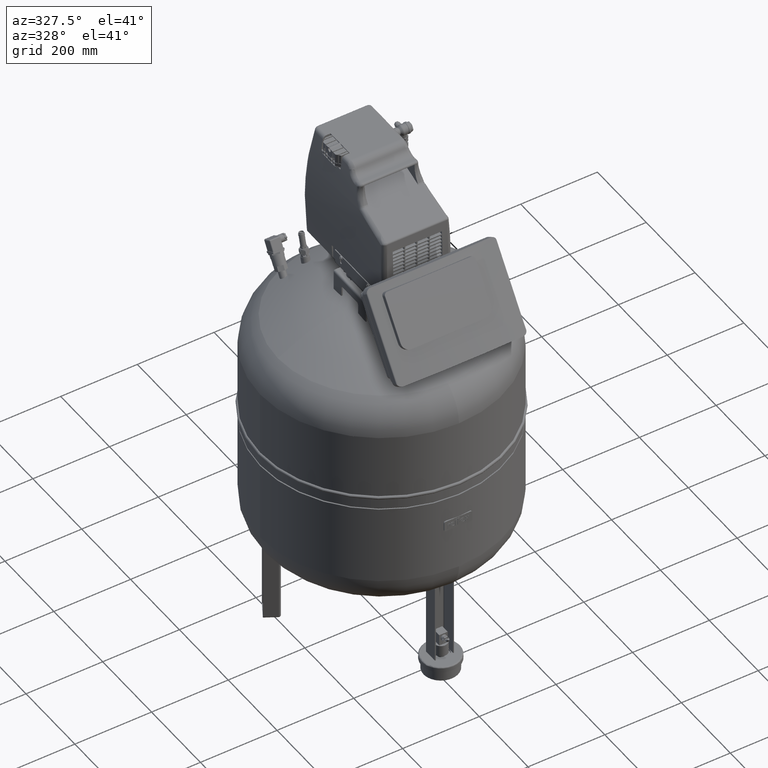
[diagram: clean part render]
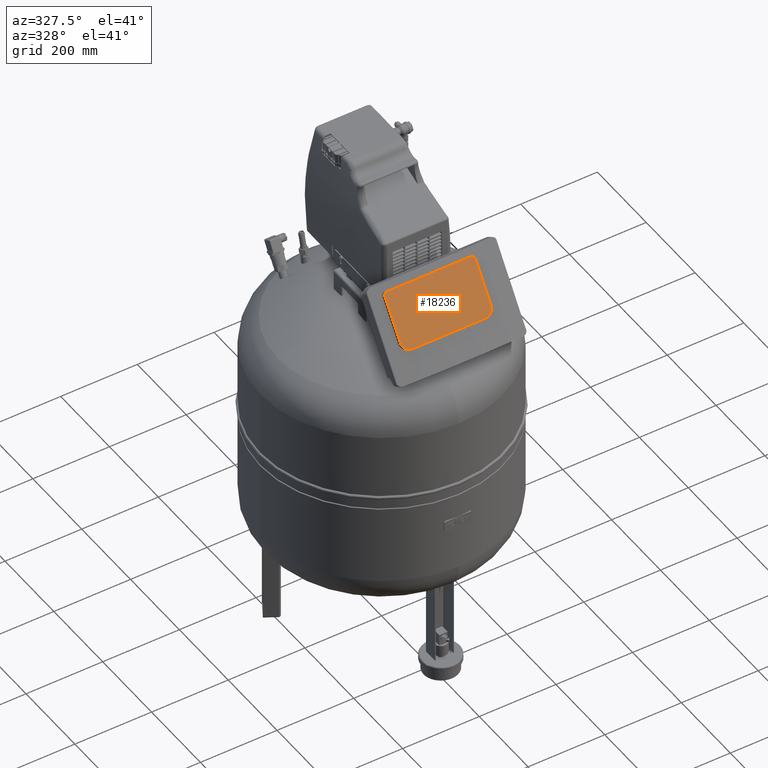
[diagram: same view with one face highlighted and labeled with its STEP entity id]
A machine part, auxiliary view. The second image highlights one B-rep face of the part: STEP entity #18236.
In plain terms, the highlighted planar face has unit normal (-0, -0.8192, 0.5736).
Its self-contained STEP definition (entity closure, byte-faithful):
#18031=CARTESIAN_POINT('',(-137.30000057976841,-293.02819002678893,1049.1023228608317));
#18032=VERTEX_POINT('',#18031);
#18039=CARTESIAN_POINT('',(-137.30000057976818,-229.93478202817394,1139.2090477326208));
#18040=VERTEX_POINT('',#18039);
#18041=CARTESIAN_POINT('',(-137.30000057976818,-229.93478202817394,1139.2090477326208));
#18042=DIRECTION('',(-5.167584E-016,-0.573576436351045,-0.819152044288992));
#18043=VECTOR('',#18042,109.99999999999991);
#18044=LINE('',#18041,#18043);
#18045=EDGE_CURVE('',#18040,#18032,#18044,.T.);
#18062=CARTESIAN_POINT('',(-115.80000057976847,-305.36008340833638,1031.4905539086183));
#18063=VERTEX_POINT('',#18062);
#18070=CARTESIAN_POINT('',(-115.80000057976824,-293.02819002678893,1049.1023228608317));
#18071=DIRECTION('',(0.0,-0.819152044288992,0.573576436351046));
#18072=DIRECTION('',(-1.0,0.0,0.0));
#18073=AXIS2_PLACEMENT_3D('',#18070,#18071,#18072);
#18074=CIRCLE('',#18073,21.500000000000021);
#18075=EDGE_CURVE('',#18032,#18063,#18074,.T.);
#18087=CARTESIAN_POINT('',(77.199999420231791,-305.36008340833666,1031.4905539086183));
#18088=VERTEX_POINT('',#18087);
#18095=CARTESIAN_POINT('',(-115.80000057976847,-305.36008340833638,1031.4905539086183));
#18096=DIRECTION('',(1.0,0.0,0.0));
#18097=VECTOR('',#18096,193.00000000000026);
#18098=LINE('',#18095,#18097);
#18099=EDGE_CURVE('',#18063,#18088,#18098,.T.);
#18111=CARTESIAN_POINT('',(98.699999420231791,-293.02819002678916,1049.1023228608317));
#18112=VERTEX_POINT('',#18111);
#18119=CARTESIAN_POINT('',(77.199999420231791,-293.02819002678916,1049.1023228608317));
#18120=DIRECTION('',(-1.672843E-016,-0.819152044288992,0.573576436351045));
#18121=DIRECTION('',(-5.086343E-016,-0.573576436351045,-0.819152044288992));
#18122=AXIS2_PLACEMENT_3D('',#18119,#18120,#18121);
#18123=CIRCLE('',#18122,21.500000000000011);
#18124=EDGE_CURVE('',#18088,#18112,#18123,.T.);
#18136=CARTESIAN_POINT('',(98.699999420231791,-229.93478202817394,1139.2090477326208));
#18137=VERTEX_POINT('',#18136);
#18144=CARTESIAN_POINT('',(98.699999420231791,-293.02819002678916,1049.1023228608317));
#18145=DIRECTION('',(3.875688E-016,0.573576436351045,0.819152044288993));
#18146=VECTOR('',#18145,110.00000000000014);
#18147=LINE('',#18144,#18146);
#18148=EDGE_CURVE('',#18112,#18137,#18147,.T.);
#18160=CARTESIAN_POINT('',(90.199999420231791,-225.05938231919015,1146.1718401090773));
#18161=VERTEX_POINT('',#18160);
#18168=CARTESIAN_POINT('',(90.199999420231791,-229.93478202817394,1139.2090477326208));
#18169=DIRECTION('',(0.0,-0.819152044288992,0.573576436351046));
#18170=DIRECTION('',(1.0,0.0,0.0));
#18171=AXIS2_PLACEMENT_3D('',#18168,#18169,#18170);
#18172=CIRCLE('',#18171,8.49999999999997);
#18173=EDGE_CURVE('',#18137,#18161,#18172,.T.);
#18185=CARTESIAN_POINT('',(-128.80000057976818,-225.05938231918992,1146.1718401090773));
#18186=VERTEX_POINT('',#18185);
#18193=CARTESIAN_POINT('',(90.199999420231791,-225.05938231919015,1146.1718401090773));
#18194=DIRECTION('',(-1.0,0.0,0.0));
#18195=VECTOR('',#18194,219.0);
#18196=LINE('',#18193,#18195);
#18197=EDGE_CURVE('',#18161,#18186,#18196,.T.);
#18210=CARTESIAN_POINT('',(-128.80000057976818,-229.93478202817394,1139.2090477326208));
#18211=DIRECTION('',(-1.672843E-016,-0.819152044288993,0.573576436351046));
#18212=DIRECTION('',(5.086343E-016,0.573576436351045,0.819152044288992));
#18213=AXIS2_PLACEMENT_3D('',#18210,#18211,#18212);
#18214=CIRCLE('',#18213,8.500000000000016);
#18215=EDGE_CURVE('',#18186,#18040,#18214,.T.);
#18221=CARTESIAN_POINT('',(-19.300000579768209,-264.03449491755674,1090.5096107391703));
#18222=DIRECTION('',(-1.672843E-016,-0.819152044288992,0.573576436351046));
#18223=DIRECTION('',(-1.0,0.0,0.0));
#18224=AXIS2_PLACEMENT_3D('',#18221,#18222,#18223);
#18225=PLANE('',#18224);
#18226=ORIENTED_EDGE('',*,*,#18045,.T.);
#18227=ORIENTED_EDGE('',*,*,#18075,.T.);
#18228=ORIENTED_EDGE('',*,*,#18099,.T.);
#18229=ORIENTED_EDGE('',*,*,#18124,.T.);
#18230=ORIENTED_EDGE('',*,*,#18148,.T.);
#18231=ORIENTED_EDGE('',*,*,#18173,.T.);
#18232=ORIENTED_EDGE('',*,*,#18197,.T.);
#18233=ORIENTED_EDGE('',*,*,#18215,.T.);
#18234=EDGE_LOOP('',(#18226,#18227,#18228,#18229,#18230,#18231,#18232,#18233));
#18235=FACE_OUTER_BOUND('',#18234,.T.);
#18236=ADVANCED_FACE('',(#18235),#18225,.T.);